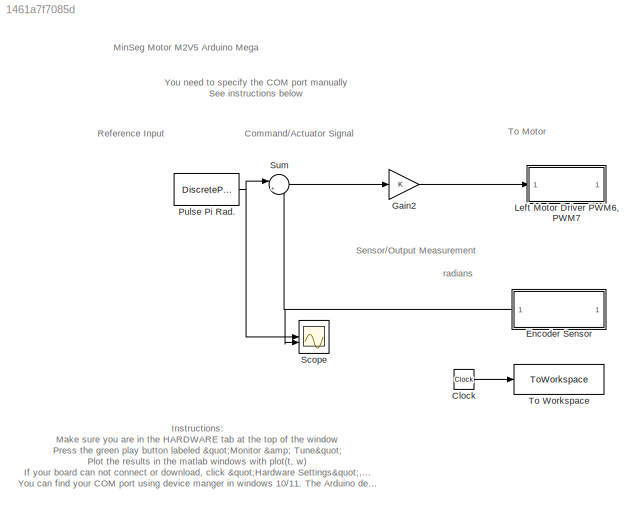
MODEL slx_1461a7f7085d
KIND model
CONFIG AbsTol = auto
CONFIG EnableMultiTasking = on
CONFIG FixedStep = .004
CONFIG MaxStep = auto
CONFIG MinStep = auto
CONFIG RelTol = 1e-3
CONFIG SampleTimeConstraint = Unconstrained
CONFIG SolverName = FixedStepDiscrete
CONFIG StartTime = 0.0
CONFIG StopTime = inf
BLOCK [Clock] Clock
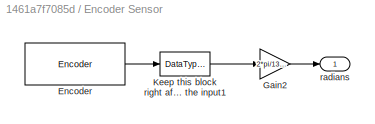
BLOCK [SubSystem] Encoder Sensor
  NameLocation = top
BLOCK [Reference] Encoder Sensor/Encoder  REF=arduinosensorlib/Encoder
  SourceBlock = arduinosensorlib/Encoder
  SourceType = Arduino Rotary Encoder
BLOCK [Gain] Encoder Sensor/Gain2
  Gain = 2*pi/1336
BLOCK [DataTypeConversion] Encoder Sensor/Keep this block right after the input1
  OutDataTypeStr = double
  RndMeth = Floor
  SaturateOnIntegerOverflow = off
BLOCK [Outport] Encoder Sensor/radians
BLOCK [Gain] Gain2
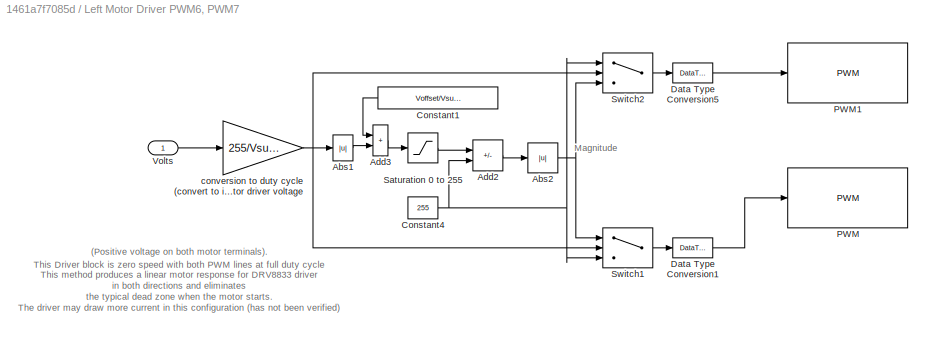
BLOCK [SubSystem] Left Motor Driver PWM6, PWM7
BLOCK [Abs] Left Motor Driver PWM6, PWM7/Abs1
  SaturateOnIntegerOverflow = off
BLOCK [Abs] Left Motor Driver PWM6, PWM7/Abs2
  SaturateOnIntegerOverflow = off
BLOCK [Sum] Left Motor Driver PWM6, PWM7/Add2
  IconShape = rectangular
  Inputs = -+
BLOCK [Sum] Left Motor Driver PWM6, PWM7/Add3
  IconShape = rectangular
BLOCK [Constant] Left Motor Driver PWM6, PWM7/Constant1
  NameLocation = top
  Value = Voffset/Vsupply*255
BLOCK [Constant] Left Motor Driver PWM6, PWM7/Constant4
  Value = 255
BLOCK [DataTypeConversion] Left Motor Driver PWM6, PWM7/Data Type Conversion1
  OutDataTypeStr = uint8
  RndMeth = Floor
  SaturateOnIntegerOverflow = off
BLOCK [DataTypeConversion] Left Motor Driver PWM6, PWM7/Data Type Conversion5
  OutDataTypeStr = uint8
  RndMeth = Floor
  SaturateOnIntegerOverflow = off
BLOCK [Reference] Left Motor Driver PWM6, PWM7/PWM  REF=arduinolib/PWM
  SourceBlock = arduinolib/PWM
  SourceType = Arduino PWM
BLOCK [Reference] Left Motor Driver PWM6, PWM7/PWM1  REF=arduinolib/PWM
  SourceBlock = arduinolib/PWM
  SourceType = Arduino PWM
BLOCK [Saturate] Left Motor Driver PWM6, PWM7/Saturation 0 to 255
  LowerLimit = 0
  UpperLimit = 255
BLOCK [Switch] Left Motor Driver PWM6, PWM7/Switch1
  InputSameDT = off
  SaturateOnIntegerOverflow = off
BLOCK [Switch] Left Motor Driver PWM6, PWM7/Switch2
  InputSameDT = off
  SaturateOnIntegerOverflow = off
BLOCK [Inport] Left Motor Driver PWM6, PWM7/Volts
BLOCK [Gain] Left Motor Driver PWM6, PWM7/conversion to duty cycle (convert to int) denominator is motor driver voltage
  Gain = 255/Vsupply
  OutDataTypeStr = int16
BLOCK [DiscretePulseGenerator] Pulse Pi Rad.
  Amplitude = pi
  Period = 4
  PulseType = Time based
  PulseWidth = 50
BLOCK [Scope] Scope
  ActiveDisplayYMaximum = 4.4002285525202751
  ActiveDisplayYMinimum = -1.3197746202349663
  Floating = off
  GraphicalSettings = {"Style":{"BackgroundColor":[0.12941176470588237,0.12941176470588237,0.12941176470588237],"AxesColor":[0.07058823529411765,0.07058823529411765,0.07058823529411765],"LabelsColor":[0.8509803921568627,0.8509803921568627,0.8509803921568627],"PreserveColors":false,"Visible":[true,true],"LineStyle":["-","-"],"LineWidth":[1.5,1.5],"BarWidth":[0.9,0.9],"LineColor":["auto","auto"],"LineFaceAlpha":[1,1],"Li...<+2037ch>
  MultipleDisplayCache = [{"MaxYLimMag":4.4002285525202751,"MaxYLimReal":4.4002285525202751,"MinYLimMag":0,"MinYLimReal":-1.3197746202349663,"PlotAsMagnitudePhase":false,"ShowGrid":true,"ShowLegend":false,"Title":"%<SignalLabel>","YLabel":""}]
  NumInputPorts = 2
  ScopeFrameLocation = window
  Visible = on
  WasSavedAsWebScope = on
  WindowPosition = [1693.000000,434.000000,609.000000,843.000000,]
BLOCK [Sum] Sum
  Inputs = |+-
BLOCK [ToWorkspace] To Workspace
  FixptAsFi = on
  MaxDataPoints = inf
  SampleTime = -1
  Save2DSignal = 2-D array (concatenate along first dimension)
  VariableName = t
ANNOTATION (root): Instructions : Make sure you are in the HARDWARE tab at the top of the window Press the green play button labeled "Monitor & Tune" Plot the results in the matlab windows with plot(t, w) If your board can not connect or download, click "Hardware Settings", "Hardware Implementation", "Target hardware resources", "Host-board connection" and "Set host COM port" to "Manually Select" set your COM port t...<+135ch>
ANNOTATION (root): Command/Actuator Signal
ANNOTATION (root): Reference Input
ANNOTATION (root): Sensor/Output Measurement
ANNOTATION (root): To Motor
ANNOTATION (root): You need to specify the COM port manually See instructions below
ANNOTATION (root): MinSeg Motor M2V5 Arduino Mega
ANNOTATION (root): radians
ANNOTATION Left Motor Driver PWM6, PWM7: Magnitude
ANNOTATION Left Motor Driver PWM6, PWM7: This Driver block is zero speed with both PWM lines at full duty cycle (Positive voltage on both motor terminals). This method produces a linear motor response for DRV8833 driver in both directions and eliminates the typical dead zone when the motor starts. The driver may draw more current in this configuration (has not been verified) The SN754410 driver this has no effect, so the driver could alt...<+76ch>
LINE Clock:1 -> To Workspace:1
LINE Encoder Sensor/Encoder:1 -> Encoder Sensor/Keep this block right after the input1:1
LINE Encoder Sensor/Gain2:1 -> Encoder Sensor/radians:1
LINE Encoder Sensor/Keep this block right after the input1:1 -> Encoder Sensor/Gain2:1
NET Encoder Sensor:1 -> Scope:2, Sum:2
LINE Gain2:1 -> Left Motor Driver PWM6, PWM7:1
LINE Left Motor Driver PWM6, PWM7/Abs1:1 -> Left Motor Driver PWM6, PWM7/Add3:2
NET Left Motor Driver PWM6, PWM7/Abs2:1 -> Left Motor Driver PWM6, PWM7/Switch1:1, Left Motor Driver PWM6, PWM7/Switch2:3
LINE Left Motor Driver PWM6, PWM7/Add2:1 -> Left Motor Driver PWM6, PWM7/Abs2:1
LINE Left Motor Driver PWM6, PWM7/Add3:1 -> Left Motor Driver PWM6, PWM7/Saturation 0 to 255:1
LINE Left Motor Driver PWM6, PWM7/Constant1:1 -> Left Motor Driver PWM6, PWM7/Add3:1
NET Left Motor Driver PWM6, PWM7/Constant4:1 -> Left Motor Driver PWM6, PWM7/Add2:2, Left Motor Driver PWM6, PWM7/Switch1:3, Left Motor Driver PWM6, PWM7/Switch2:1
LINE Left Motor Driver PWM6, PWM7/Data Type Conversion1:1 -> Left Motor Driver PWM6, PWM7/PWM:1
LINE Left Motor Driver PWM6, PWM7/Data Type Conversion5:1 -> Left Motor Driver PWM6, PWM7/PWM1:1
LINE Left Motor Driver PWM6, PWM7/Saturation 0 to 255:1 -> Left Motor Driver PWM6, PWM7/Add2:1
LINE Left Motor Driver PWM6, PWM7/Switch1:1 -> Left Motor Driver PWM6, PWM7/Data Type Conversion1:1
LINE Left Motor Driver PWM6, PWM7/Switch2:1 -> Left Motor Driver PWM6, PWM7/Data Type Conversion5:1
LINE Left Motor Driver PWM6, PWM7/Volts:1 -> Left Motor Driver PWM6, PWM7/conversion to duty cycle (convert to int) denominator is motor driver voltage:1
NET Left Motor Driver PWM6, PWM7/conversion to duty cycle (convert to int) denominator is motor driver voltage:1 -> Left Motor Driver PWM6, PWM7/Abs1:1, Left Motor Driver PWM6, PWM7/Switch1:2, Left Motor Driver PWM6, PWM7/Switch2:2
NET Pulse Pi Rad.:1 -> Scope:1, Sum:1
LINE Sum:1 -> Gain2:1
note: NET lines group one-source signal fan-out (src -> all destinations, sorted); 1:1 wires keep LINE
